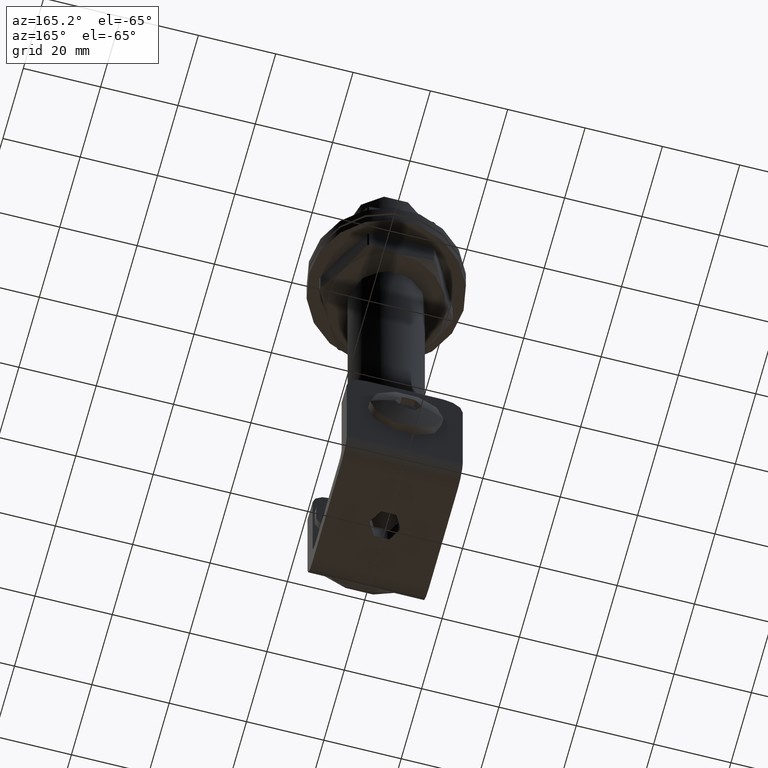
[diagram: clean part render]
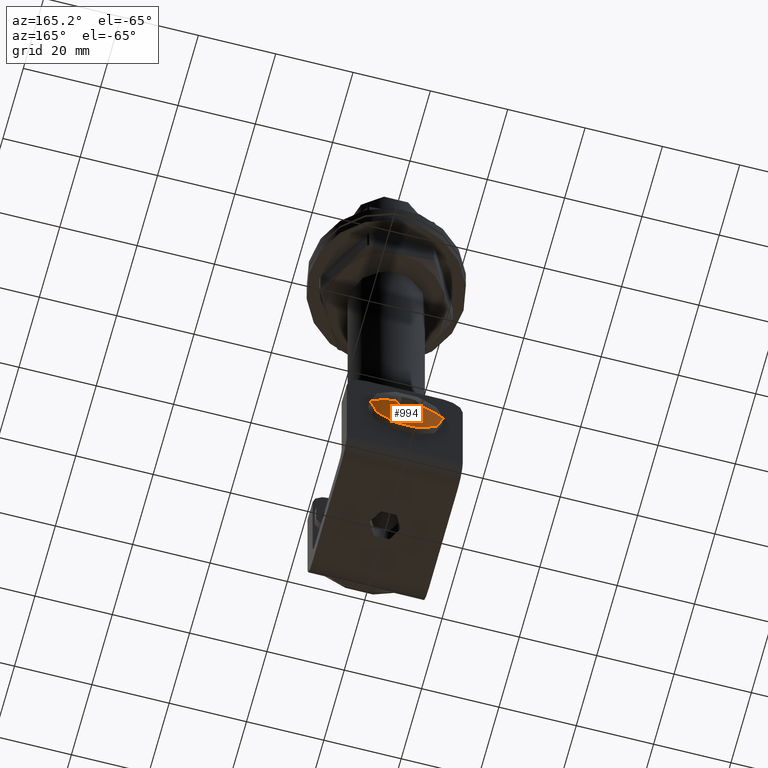
[diagram: same view with one face highlighted and labeled with its STEP entity id]
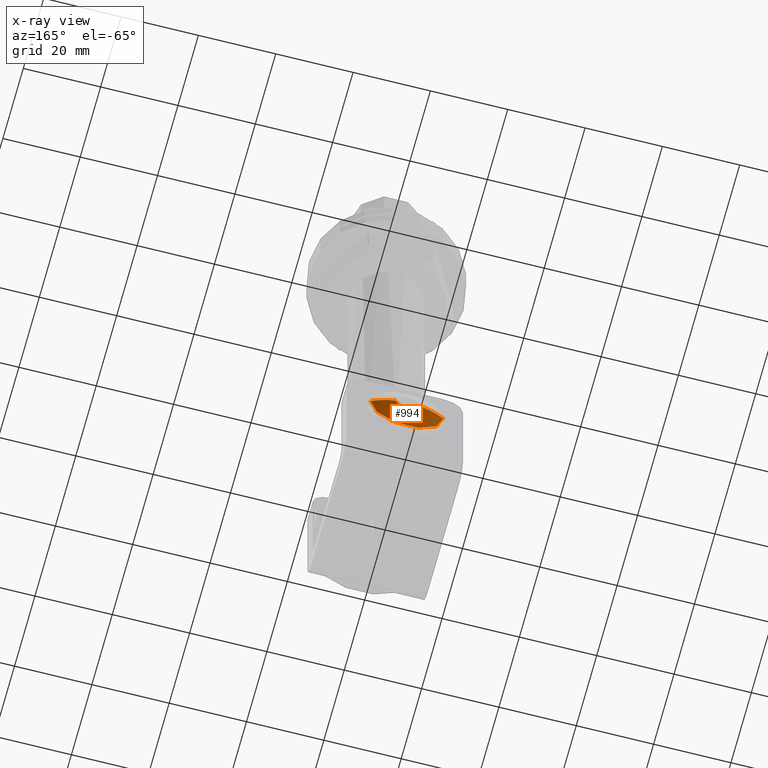
[diagram: x-ray of the same camera — body ghosted, the highlighted face saturated]
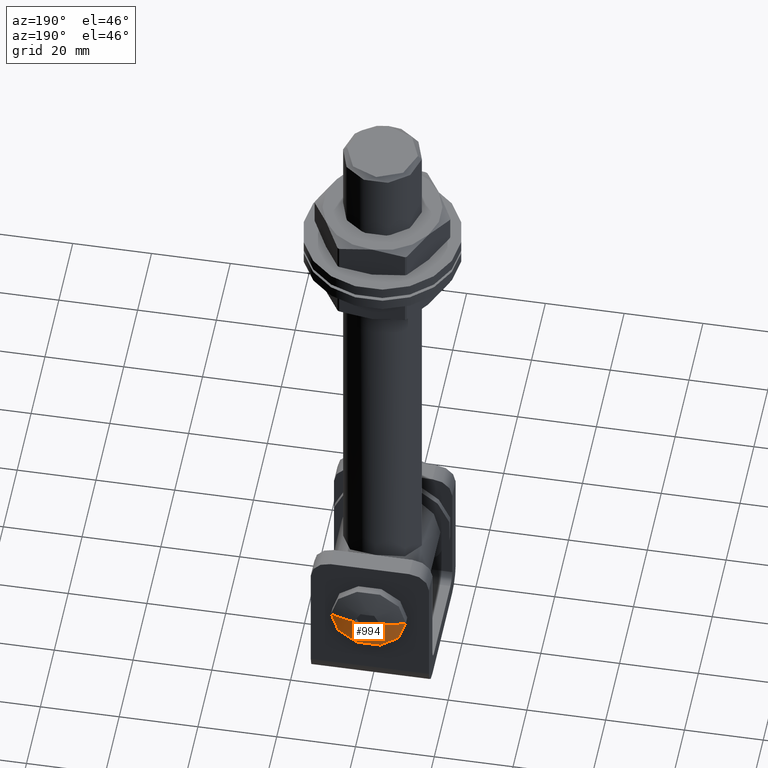
[diagram: same view with one face highlighted and labeled with its STEP entity id]
A machine part, auxiliary view. The second image highlights one B-rep face of the part: STEP entity #994.
The next image is the same camera in x-ray: the body ghosted, the highlighted face saturated — about 0% of this face is hidden behind the body in this view.
A second angle (auxiliary view) of the same face is appended — the face is thin or edge-on in the first view.
In plain terms, the highlighted spherical surface has radius 23.5625 mm.
Its self-contained STEP definition (entity closure, byte-faithful):
#139 = CARTESIAN_POINT ( 'NONE',  ( -9.499999999999996447, 16.99999999999999289, 1.163414459189984894E-15 ) ) ;
#994 = ADVANCED_FACE ( 'NONE', ( #14665 ), #5358, .T. ) ;
#1049 = AXIS2_PLACEMENT_3D ( 'NONE', #14823, #10642, #7706 ) ;
#2519 = CARTESIAN_POINT ( 'NONE',  ( -1.732050807568878747, 18.74396704779598011, -3.000000000000000000 ) ) ;
#2542 = CARTESIAN_POINT ( 'NONE',  ( 9.499999999999994671, 16.99999999999999289, 0.000000000000000000 ) ) ;
#2544 = AXIS2_PLACEMENT_3D ( 'NONE', #17075, #9823, #18335 ) ;
#2694 = ORIENTED_EDGE ( 'NONE', *, *, #8790, .F. ) ;
#2715 = CIRCLE ( 'NONE', #17097, 9.499999999999996447 ) ;
#3552 = VERTEX_POINT ( 'NONE', #2519 ) ;
#3687 = EDGE_CURVE ( 'NONE', #3552, #12674, #6207, .T. ) ;
#3909 = DIRECTION ( 'NONE',  ( 1.000000000000000000, 1.104333247306191195E-16, 0.000000000000000000 ) ) ;
#4066 = DIRECTION ( 'NONE',  ( 1.000000000000000000, 0.000000000000000000, -1.224646799147353207E-16 ) ) ;
#4094 = DIRECTION ( 'NONE',  ( -1.000000000000000000, -7.088611844384195741E-15, 1.298960285620140525E-16 ) ) ;
#4942 = AXIS2_PLACEMENT_3D ( 'NONE', #9205, #7546, #10489 ) ;
#5242 = DIRECTION ( 'NONE',  ( 9.998512966023779340E-17, -1.000000000000000000, -0.000000000000000000 ) ) ;
#5358 = SPHERICAL_SURFACE ( 'NONE', #8335, 23.56249999999997868 ) ;
#5419 = ORIENTED_EDGE ( 'NONE', *, *, #18631, .T. ) ;
#5484 = CARTESIAN_POINT ( 'NONE',  ( 6.451531724204477776E-16, -4.562499999999983125, -3.000000000000000000 ) ) ;
#5493 = ORIENTED_EDGE ( 'NONE', *, *, #12333, .F. ) ;
#6207 = CIRCLE ( 'NONE', #1049, 23.37073824786027387 ) ;
#6568 = CARTESIAN_POINT ( 'NONE',  ( -1.699747204224042463E-15, 16.99999999999999645, 0.000000000000000000 ) ) ;
#6665 = CIRCLE ( 'NONE', #10073, 23.37073824786027387 ) ;
#7094 = CIRCLE ( 'NONE', #2544, 23.37073824786027743 ) ;
#7546 = DIRECTION ( 'NONE',  ( 0.000000000000000000, 0.000000000000000000, -1.000000000000000000 ) ) ;
#7706 = DIRECTION ( 'NONE',  ( -0.5000000000000000000, -2.842867367957222031E-14, 0.8660254037844387076 ) ) ;
#7741 = ORIENTED_EDGE ( 'NONE', *, *, #16226, .F. ) ;
#8152 = CARTESIAN_POINT ( 'NONE',  ( 1.732050807568875195, 18.74396704779598011, -3.000000000000000000 ) ) ;
#8335 = AXIS2_PLACEMENT_3D ( 'NONE', #11451, #17241, #3909 ) ;
#8790 = EDGE_CURVE ( 'NONE', #12011, #13476, #7094, .T. ) ;
#9205 = CARTESIAN_POINT ( 'NONE',  ( 1.020731822104737683E-15, -4.562499999999983125, 0.000000000000000000 ) ) ;
#9287 = EDGE_CURVE ( 'NONE', #13476, #3552, #6665, .T. ) ;
#9334 = ORIENTED_EDGE ( 'NONE', *, *, #9287, .F. ) ;
#9823 = DIRECTION ( 'NONE',  ( -0.8660254037844385966, -0.000000000000000000, 0.5000000000000003331 ) ) ;
#10073 = AXIS2_PLACEMENT_3D ( 'NONE', #5484, #12847, #4094 ) ;
#10489 = DIRECTION ( 'NONE',  ( -1.000000000000000000, 0.000000000000000000, 0.000000000000000000 ) ) ;
#10642 = DIRECTION ( 'NONE',  ( 0.8660254037844387076, 0.000000000000000000, 0.5000000000000000000 ) ) ;
#11033 = CARTESIAN_POINT ( 'NONE',  ( -3.464101615137755719, 18.74396704779598011, 0.000000000000000000 ) ) ;
#11451 = CARTESIAN_POINT ( 'NONE',  ( 1.020731822104737683E-15, -4.562499999999983125, 0.000000000000000000 ) ) ;
#11497 = VERTEX_POINT ( 'NONE', #139 ) ;
#12011 = VERTEX_POINT ( 'NONE', #12331 ) ;
#12331 = CARTESIAN_POINT ( 'NONE',  ( 3.464101615137753054, 18.74396704779598011, -8.673617379884035472E-16 ) ) ;
#12333 = EDGE_CURVE ( 'NONE', #12674, #11497, #15451, .T. ) ;
#12674 = VERTEX_POINT ( 'NONE', #11033 ) ;
#12847 = DIRECTION ( 'NONE',  ( 1.251928832280966435E-16, 0.000000000000000000, 1.000000000000000000 ) ) ;
#13476 = VERTEX_POINT ( 'NONE', #8152 ) ;
#13547 = CIRCLE ( 'NONE', #4942, 23.56249999999997868 ) ;
#14155 = CARTESIAN_POINT ( 'NONE',  ( 1.020731822104737683E-15, -4.562499999999983125, 0.000000000000000000 ) ) ;
#14665 = FACE_OUTER_BOUND ( 'NONE', #17236, .T. ) ;
#14823 = CARTESIAN_POINT ( 'NONE',  ( -2.598076211353316900, -4.562499999999983125, -1.500000000000000888 ) ) ;
#15391 = DIRECTION ( 'NONE',  ( 1.000000000000000000, 0.000000000000000000, 0.000000000000000000 ) ) ;
#15451 = CIRCLE ( 'NONE', #16210, 23.56249999999997868 ) ;
#15782 = VERTEX_POINT ( 'NONE', #2542 ) ;
#16210 = AXIS2_PLACEMENT_3D ( 'NONE', #14155, #17343, #4066 ) ;
#16226 = EDGE_CURVE ( 'NONE', #11497, #15782, #2715, .T. ) ;
#17075 = CARTESIAN_POINT ( 'NONE',  ( 2.598076211353313791, -4.562499999999983125, -1.499999999999999334 ) ) ;
#17097 = AXIS2_PLACEMENT_3D ( 'NONE', #6568, #5242, #15391 ) ;
#17236 = EDGE_LOOP ( 'NONE', ( #5493, #18758, #9334, #2694, #5419, #7741 ) ) ;
#17241 = DIRECTION ( 'NONE',  ( 0.000000000000000000, -0.000000000000000000, 1.000000000000000000 ) ) ;
#17343 = DIRECTION ( 'NONE',  ( 1.224646799147353207E-16, 1.224464690007432993E-32, 1.000000000000000000 ) ) ;
#18335 = DIRECTION ( 'NONE',  ( -0.5000000000000002220, -2.842867367957221400E-14, -0.8660254037844384856 ) ) ;
#18631 = EDGE_CURVE ( 'NONE', #12011, #15782, #13547, .T. ) ;
#18758 = ORIENTED_EDGE ( 'NONE', *, *, #3687, .F. ) ;